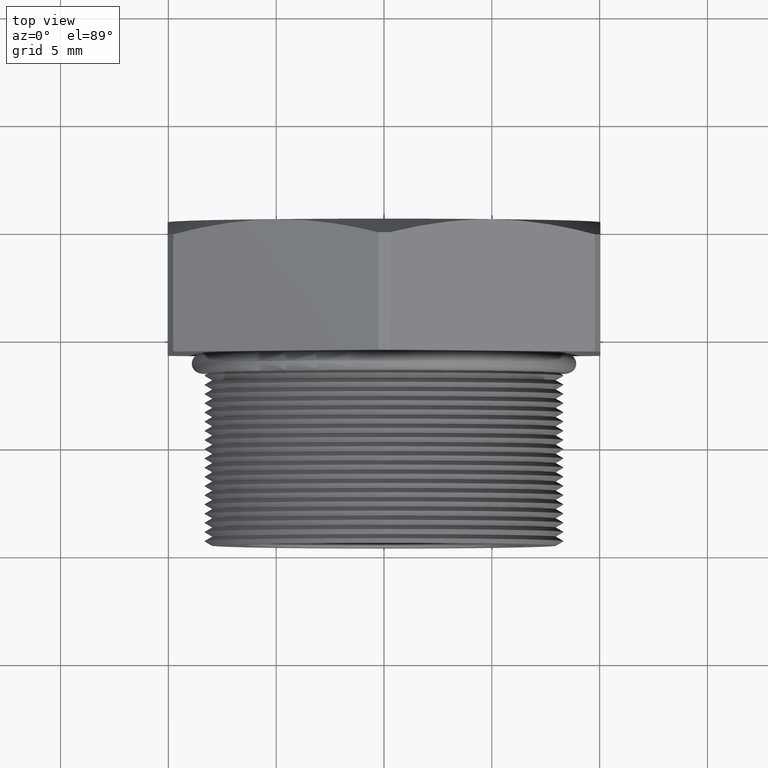
[diagram: clean part render]
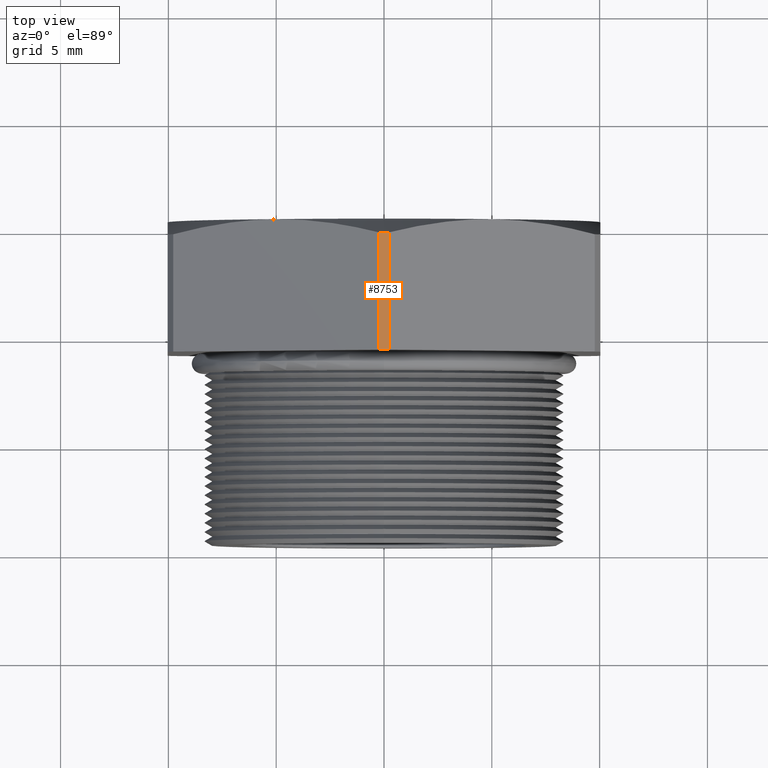
[diagram: same view with one face highlighted and labeled with its STEP entity id]
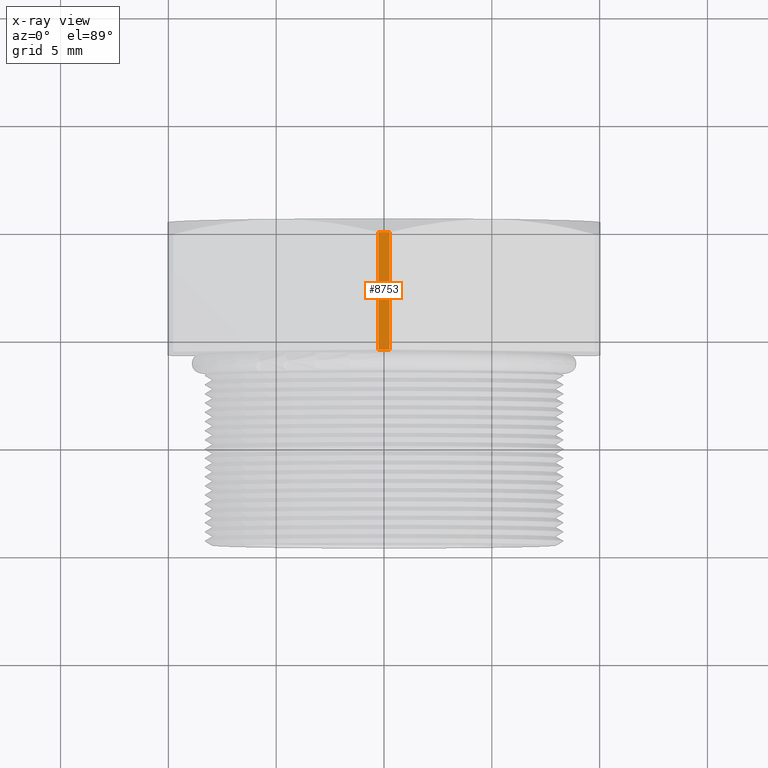
[diagram: x-ray of the same camera — body ghosted, the highlighted face saturated]
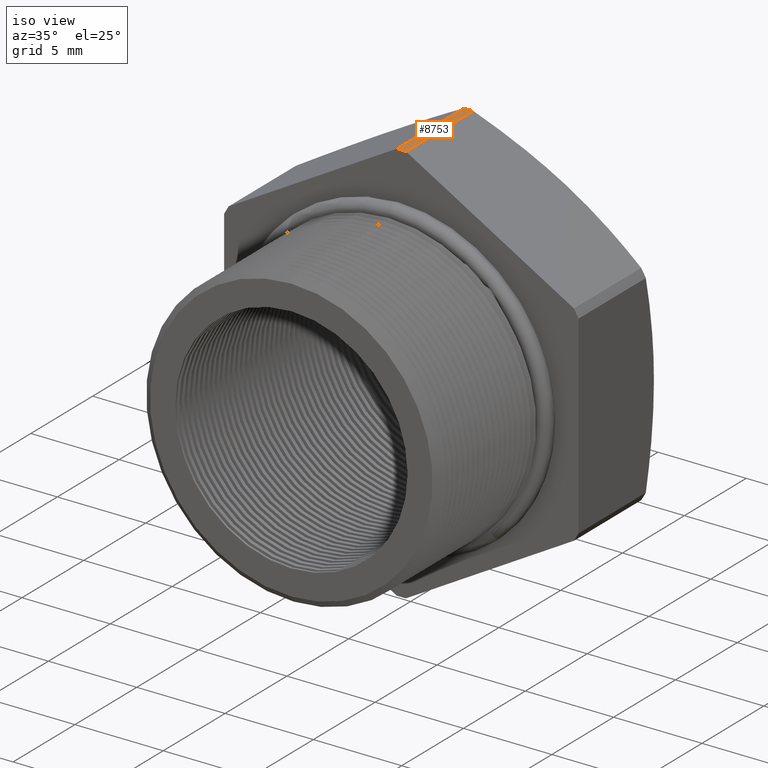
[diagram: same view with one face highlighted and labeled with its STEP entity id]
A machine part, top view. The second image highlights one B-rep face of the part: STEP entity #8753.
The next image is the same camera in x-ray: the body ghosted, the highlighted face saturated — about 0% of this face is hidden behind the body in this view.
A second angle (iso view) of the same face is appended — the face is thin or edge-on in the first view.
In plain terms, the highlighted cylindrical surface (partial cylindrical patch) has radius 11.4376 mm, axis along (-0, -1, -0).
Its self-contained STEP definition (entity closure, byte-faithful):
#1038 = VERTEX_POINT ( 'NONE', #3716 ) ;
#1040 = EDGE_CURVE ( 'NONE', #1041, #1038, #3779, .T. ) ;
#1041 = VERTEX_POINT ( 'NONE', #3774 ) ;
#3716 = CARTESIAN_POINT ( 'NONE',  ( 0.0000000000000000000, 0.3817680770869766300, 0.4502999999999999800 ) ) ;
#3774 = CARTESIAN_POINT ( 'NONE',  ( 0.01026000026703751200, 0.3817680770869766900, 0.4501830987437447900 ) ) ;
#3775 = DIRECTION ( 'NONE',  ( 0.0000000000000000000, 0.0000000000000000000, -1.000000000000000000 ) ) ;
#3776 = DIRECTION ( 'NONE',  ( 0.0000000000000000000, -1.000000000000000000, 0.0000000000000000000 ) ) ;
#3777 = CARTESIAN_POINT ( 'NONE',  ( 0.0000000000000000000, 0.3817680770869766300, 0.0000000000000000000 ) ) ;
#3778 = AXIS2_PLACEMENT_3D ( 'NONE', #3777, #3776, #3775 ) ;
#3779 = CIRCLE ( 'NONE', #3778, 0.4502999999999999800 ) ;
#6670 = CARTESIAN_POINT ( 'NONE',  ( -0.01026000026703719400, 0.1675548905829479500, 0.4501830987437449000 ) ) ;
#6750 = CARTESIAN_POINT ( 'NONE',  ( -0.01026000026703719400, 0.3817680770869766300, 0.4501830987437449000 ) ) ;
#6755 = CARTESIAN_POINT ( 'NONE',  ( 0.01026000026703746700, 0.1675548905829479500, 0.4501830987437449600 ) ) ;
#6783 = CARTESIAN_POINT ( 'NONE',  ( -0.01026000026703719400, 0.0000000000000000000, 0.4501830987437449000 ) ) ;
#6784 = LINE ( 'NONE', #6783, #6846 ) ;
#6799 = DIRECTION ( 'NONE',  ( 0.0000000000000000000, 0.0000000000000000000, -1.000000000000000000 ) ) ;
#6800 = DIRECTION ( 'NONE',  ( -0.0000000000000000000, -1.000000000000000000, -0.0000000000000000000 ) ) ;
#6801 = CARTESIAN_POINT ( 'NONE',  ( 0.0000000000000000000, 0.1675548905829479500, 0.0000000000000000000 ) ) ;
#6802 = AXIS2_PLACEMENT_3D ( 'NONE', #6801, #6800, #6799 ) ;
#6803 = CIRCLE ( 'NONE', #6802, 0.4502999999999999800 ) ;
#6816 = CYLINDRICAL_SURFACE ( 'NONE', #6817, 0.4502999999999999800 ) ;
#6817 = AXIS2_PLACEMENT_3D ( 'NONE', #6822, #6874, #6873 ) ;
#6818 = FACE_OUTER_BOUND ( 'NONE', #8744, .T. ) ;
#6822 = CARTESIAN_POINT ( 'NONE',  ( 0.0000000000000000000, 0.0000000000000000000, 0.0000000000000000000 ) ) ;
#6836 = DIRECTION ( 'NONE',  ( 0.0000000000000000000, 1.000000000000000000, 0.0000000000000000000 ) ) ;
#6837 = VECTOR ( 'NONE', #6836, 39.37007874015748100 ) ;
#6838 = CARTESIAN_POINT ( 'NONE',  ( 0.01026000026703756900, 0.0000000000000000000, 0.4501830987437449000 ) ) ;
#6839 = LINE ( 'NONE', #6838, #6837 ) ;
#6840 = DIRECTION ( 'NONE',  ( 0.0000000000000000000, 0.0000000000000000000, -1.000000000000000000 ) ) ;
#6841 = DIRECTION ( 'NONE',  ( 0.0000000000000000000, -1.000000000000000000, 0.0000000000000000000 ) ) ;
#6842 = CARTESIAN_POINT ( 'NONE',  ( 0.0000000000000000000, 0.3817680770869766300, 0.0000000000000000000 ) ) ;
#6843 = AXIS2_PLACEMENT_3D ( 'NONE', #6842, #6841, #6840 ) ;
#6844 = CIRCLE ( 'NONE', #6843, 0.4502999999999999800 ) ;
#6845 = DIRECTION ( 'NONE',  ( -0.0000000000000000000, -1.000000000000000000, -0.0000000000000000000 ) ) ;
#6846 = VECTOR ( 'NONE', #6845, 39.37007874015748100 ) ;
#6873 = DIRECTION ( 'NONE',  ( 0.0000000000000000000, 0.0000000000000000000, -1.000000000000000000 ) ) ;
#6874 = DIRECTION ( 'NONE',  ( -0.0000000000000000000, -1.000000000000000000, -0.0000000000000000000 ) ) ;
#8667 = VERTEX_POINT ( 'NONE', #6670 ) ;
#8689 = VERTEX_POINT ( 'NONE', #6750 ) ;
#8699 = ORIENTED_EDGE ( 'NONE', *, *, #8743, .T. ) ;
#8700 = ORIENTED_EDGE ( 'NONE', *, *, #1040, .T. ) ;
#8716 = VERTEX_POINT ( 'NONE', #6755 ) ;
#8727 = ORIENTED_EDGE ( 'NONE', *, *, #8728, .F. ) ;
#8728 = EDGE_CURVE ( 'NONE', #8716, #8667, #6803, .T. ) ;
#8738 = ORIENTED_EDGE ( 'NONE', *, *, #8740, .T. ) ;
#8740 = EDGE_CURVE ( 'NONE', #8689, #8667, #6784, .T. ) ;
#8743 = EDGE_CURVE ( 'NONE', #1038, #8689, #6844, .T. ) ;
#8744 = EDGE_LOOP ( 'NONE', ( #8745, #8700, #8699, #8738, #8727 ) ) ;
#8745 = ORIENTED_EDGE ( 'NONE', *, *, #8746, .T. ) ;
#8746 = EDGE_CURVE ( 'NONE', #8716, #1041, #6839, .T. ) ;
#8753 = ADVANCED_FACE ( 'NONE', ( #6818 ), #6816, .T. ) ;